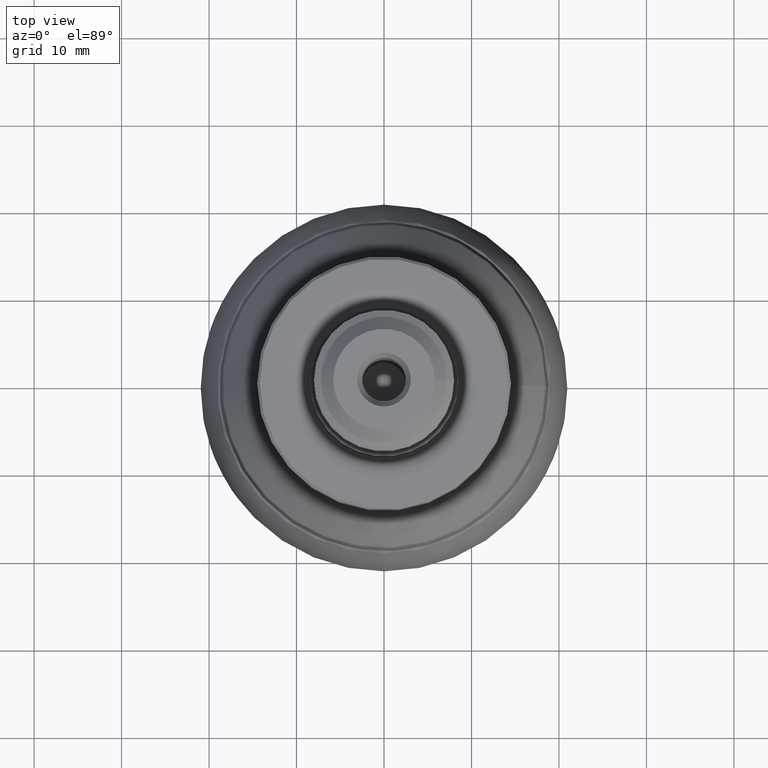
[diagram: clean part render]
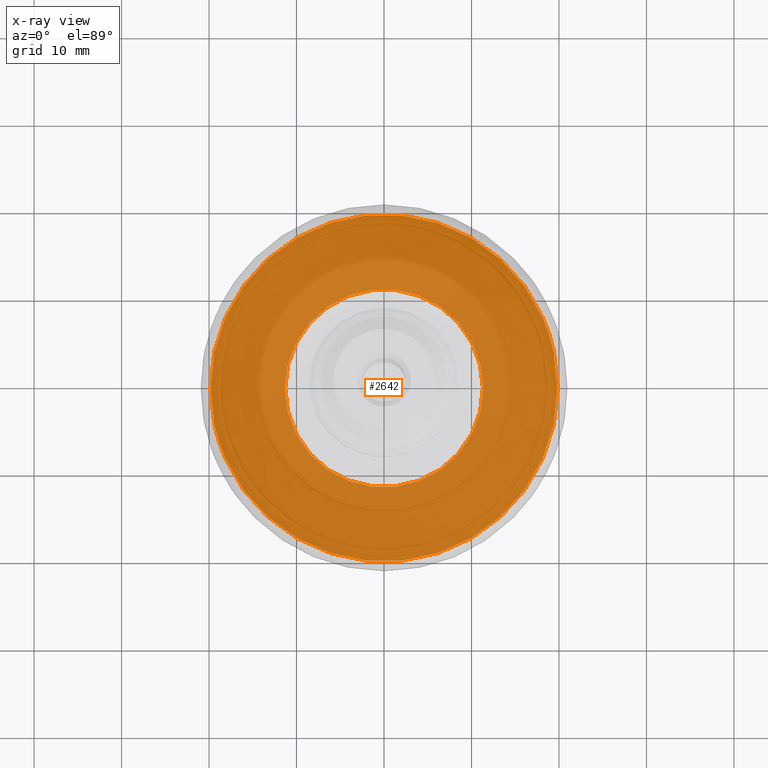
[diagram: x-ray — body ghosted, one internal face saturated and labeled with its STEP entity id]
A machine part, top view, then the same camera in x-ray: the body is ghosted and one INTERNAL B-rep face — a face not visible from any outside direction — is saturated and labeled: STEP entity #2642.
In plain terms, the highlighted conical surface has half-angle 79.657 deg.
Its self-contained STEP definition (entity closure, byte-faithful):
#164 = CARTESIAN_POINT ( 'NONE',  ( 11.31148847478660500, 0.0000000000000000000, -1.003517186808738500 ) ) ;
#182 = CARTESIAN_POINT ( 'NONE',  ( 0.0000000000000000000, 0.0000000000000000000, -1.003517186808738500 ) ) ;
#425 = EDGE_CURVE ( 'NONE', #719, #719, #3025, .T. ) ;
#441 = DIRECTION ( 'NONE',  ( 1.000000000000000000, 0.0000000000000000000, 0.0000000000000000000 ) ) ;
#719 = VERTEX_POINT ( 'NONE', #3395 ) ;
#836 = AXIS2_PLACEMENT_3D ( 'NONE', #182, #2884, #441 ) ;
#984 = DIRECTION ( 'NONE',  ( 1.000000000000000000, 0.0000000000000000000, 0.0000000000000000000 ) ) ;
#1232 = FACE_BOUND ( 'NONE', #1250, .T. ) ;
#1250 = EDGE_LOOP ( 'NONE', ( #2119 ) ) ;
#2048 = CARTESIAN_POINT ( 'NONE',  ( 0.0000000000000000000, 0.0000000000000000000, -2.560497283552476900 ) ) ;
#2119 = ORIENTED_EDGE ( 'NONE', *, *, #2401, .F. ) ;
#2134 = DIRECTION ( 'NONE',  ( -0.0000000000000000000, -0.0000000000000000000, 1.000000000000000000 ) ) ;
#2315 = AXIS2_PLACEMENT_3D ( 'NONE', #2793, #2958, #2772 ) ;
#2401 = EDGE_CURVE ( 'NONE', #2565, #2565, #3212, .T. ) ;
#2406 = ORIENTED_EDGE ( 'NONE', *, *, #425, .T. ) ;
#2565 = VERTEX_POINT ( 'NONE', #164 ) ;
#2642 = ADVANCED_FACE ( 'NONE', ( #1232, #3435 ), #3527, .T. ) ;
#2772 = DIRECTION ( 'NONE',  ( -1.000000000000000000, 0.0000000000000000000, 0.0000000000000000000 ) ) ;
#2793 = CARTESIAN_POINT ( 'NONE',  ( 0.0000000000000000000, 0.0000000000000000000, -2.560497283552476900 ) ) ;
#2807 = AXIS2_PLACEMENT_3D ( 'NONE', #2048, #2134, #984 ) ;
#2884 = DIRECTION ( 'NONE',  ( -0.0000000000000000000, -0.0000000000000000000, 1.000000000000000000 ) ) ;
#2958 = DIRECTION ( 'NONE',  ( 0.0000000000000000000, 0.0000000000000000000, -1.000000000000000000 ) ) ;
#3025 = CIRCLE ( 'NONE', #2807, 19.84262485437820100 ) ;
#3212 = CIRCLE ( 'NONE', #836, 11.31148847478660500 ) ;
#3240 = EDGE_LOOP ( 'NONE', ( #2406 ) ) ;
#3395 = CARTESIAN_POINT ( 'NONE',  ( 19.84262485437820100, 0.0000000000000000000, -2.560497283552476900 ) ) ;
#3435 = FACE_OUTER_BOUND ( 'NONE', #3240, .T. ) ;
#3527 = CONICAL_SURFACE ( 'NONE', #2315, 19.84262485437820100, 1.390277494385758800 ) ;